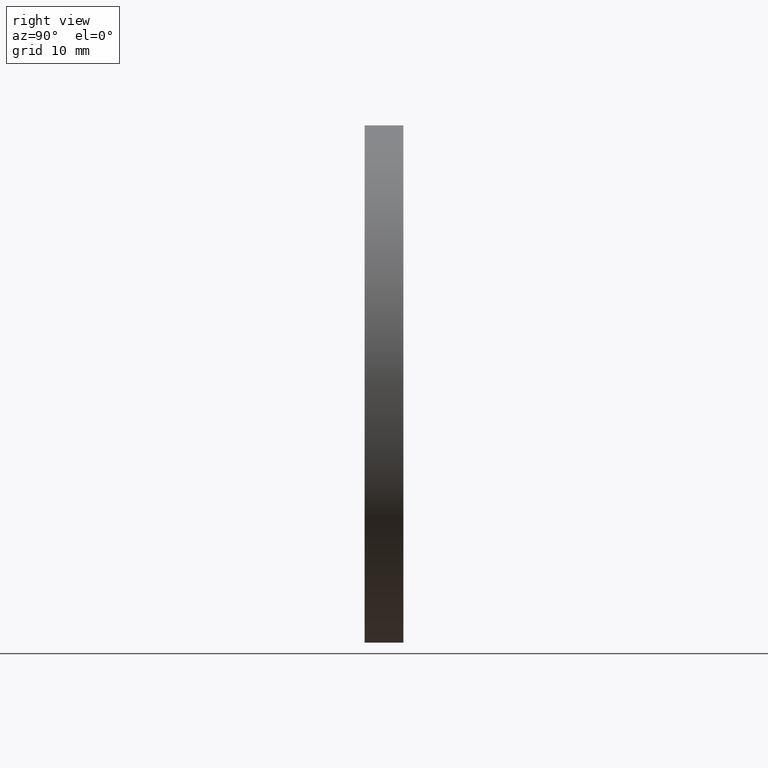
[diagram: clean part render]
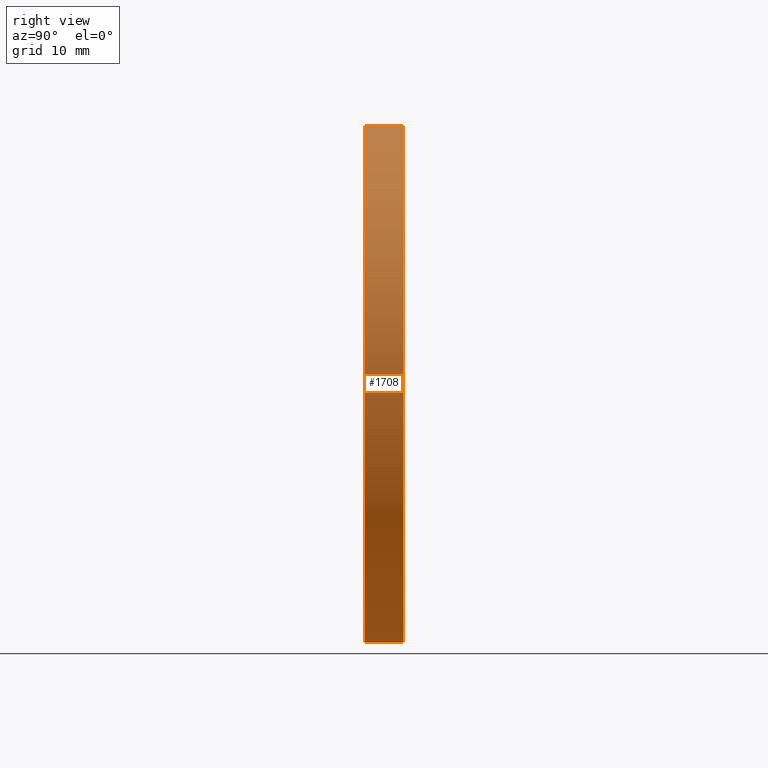
[diagram: same view with one face highlighted and labeled with its STEP entity id]
A machine part, right view. The second image highlights one B-rep face of the part: STEP entity #1708.
In plain terms, the highlighted cylindrical surface (partial cylindrical patch) has radius 40 mm, axis along (-0, -1, -0).
Its self-contained STEP definition (entity closure, byte-faithful):
#12 = FACE_OUTER_BOUND ( 'NONE', #11962, .T. ) ;
#550 = ORIENTED_EDGE ( 'NONE', *, *, #9338, .F. ) ;
#679 = AXIS2_PLACEMENT_3D ( 'NONE', #8632, #7415, #3568 ) ;
#776 = AXIS2_PLACEMENT_3D ( 'NONE', #12972, #6564, #10577 ) ;
#838 = VERTEX_POINT ( 'NONE', #1918 ) ;
#1075 = DIRECTION ( 'NONE',  ( -0.000000000000000000, -1.000000000000000000, -0.000000000000000000 ) ) ;
#1387 = AXIS2_PLACEMENT_3D ( 'NONE', #14920, #3038, #13774 ) ;
#1708 = ADVANCED_FACE ( 'NONE', ( #12 ), #16647, .T. ) ;
#1918 = CARTESIAN_POINT ( 'NONE',  ( 0.000000000000000000, 6.000000000000000000, -40.00000000000000000 ) ) ;
#2511 = EDGE_CURVE ( 'NONE', #4028, #14199, #13757, .T. ) ;
#3038 = DIRECTION ( 'NONE',  ( -0.000000000000000000, -1.000000000000000000, -0.000000000000000000 ) ) ;
#3568 = DIRECTION ( 'NONE',  ( 0.000000000000000000, 0.000000000000000000, 1.000000000000000000 ) ) ;
#4028 = VERTEX_POINT ( 'NONE', #10129 ) ;
#4042 = EDGE_CURVE ( 'NONE', #838, #7760, #10667, .T. ) ;
#4092 = CARTESIAN_POINT ( 'NONE',  ( 4.898587196589413026E-15, 0.000000000000000000, 40.00000000000000000 ) ) ;
#4522 = VECTOR ( 'NONE', #11048, 1000.000000000000000 ) ;
#5081 = CIRCLE ( 'NONE', #776, 40.00000000000000000 ) ;
#6431 = ORIENTED_EDGE ( 'NONE', *, *, #4042, .F. ) ;
#6564 = DIRECTION ( 'NONE',  ( 0.000000000000000000, 1.000000000000000000, 0.000000000000000000 ) ) ;
#7010 = EDGE_CURVE ( 'NONE', #14199, #7760, #5081, .T. ) ;
#7147 = ORIENTED_EDGE ( 'NONE', *, *, #2511, .T. ) ;
#7415 = DIRECTION ( 'NONE',  ( 0.000000000000000000, 1.000000000000000000, 0.000000000000000000 ) ) ;
#7760 = VERTEX_POINT ( 'NONE', #13215 ) ;
#8632 = CARTESIAN_POINT ( 'NONE',  ( 0.000000000000000000, 6.000000000000000000, 0.000000000000000000 ) ) ;
#9247 = VECTOR ( 'NONE', #1075, 1000.000000000000000 ) ;
#9338 = EDGE_CURVE ( 'NONE', #4028, #838, #13438, .T. ) ;
#10129 = CARTESIAN_POINT ( 'NONE',  ( 4.898587196589413026E-15, 6.000000000000000000, 40.00000000000000000 ) ) ;
#10577 = DIRECTION ( 'NONE',  ( 0.000000000000000000, 0.000000000000000000, 1.000000000000000000 ) ) ;
#10667 = LINE ( 'NONE', #16830, #9247 ) ;
#11048 = DIRECTION ( 'NONE',  ( -0.000000000000000000, -1.000000000000000000, -0.000000000000000000 ) ) ;
#11818 = ORIENTED_EDGE ( 'NONE', *, *, #7010, .T. ) ;
#11962 = EDGE_LOOP ( 'NONE', ( #550, #7147, #11818, #6431 ) ) ;
#12972 = CARTESIAN_POINT ( 'NONE',  ( 0.000000000000000000, 0.000000000000000000, 0.000000000000000000 ) ) ;
#13215 = CARTESIAN_POINT ( 'NONE',  ( 0.000000000000000000, 0.000000000000000000, -40.00000000000000000 ) ) ;
#13438 = CIRCLE ( 'NONE', #679, 40.00000000000000000 ) ;
#13611 = CARTESIAN_POINT ( 'NONE',  ( 4.898587196589413026E-15, 6.000000000000000000, 40.00000000000000000 ) ) ;
#13757 = LINE ( 'NONE', #13611, #4522 ) ;
#13774 = DIRECTION ( 'NONE',  ( 0.000000000000000000, 0.000000000000000000, -1.000000000000000000 ) ) ;
#14199 = VERTEX_POINT ( 'NONE', #4092 ) ;
#14920 = CARTESIAN_POINT ( 'NONE',  ( 0.000000000000000000, 6.000000000000000000, 0.000000000000000000 ) ) ;
#16647 = CYLINDRICAL_SURFACE ( 'NONE', #1387, 40.00000000000000000 ) ;
#16830 = CARTESIAN_POINT ( 'NONE',  ( 0.000000000000000000, 6.000000000000000000, -40.00000000000000000 ) ) ;